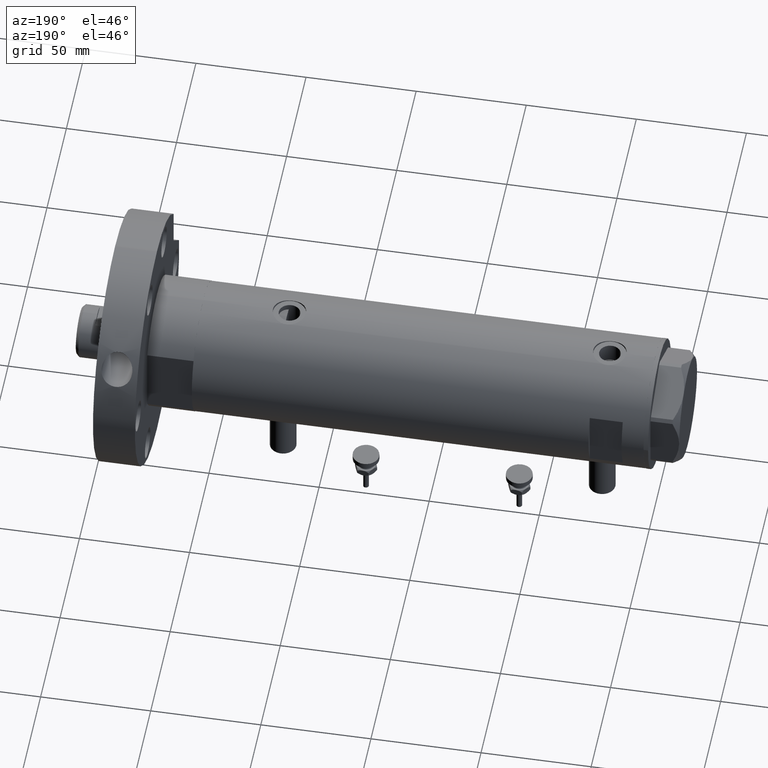
[diagram: clean part render]
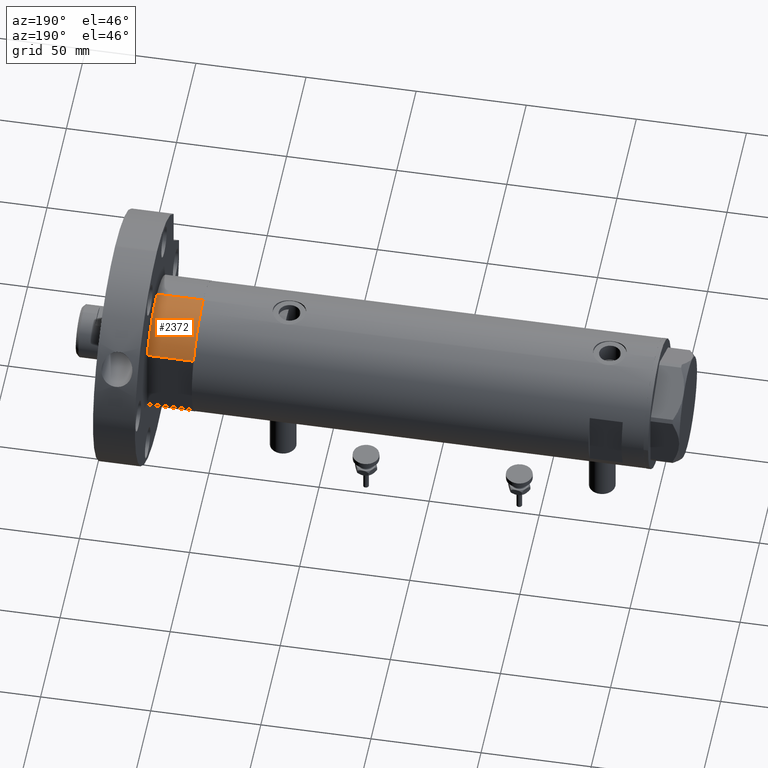
[diagram: same view with one face highlighted and labeled with its STEP entity id]
A machine part, auxiliary view. The second image highlights one B-rep face of the part: STEP entity #2372.
In plain terms, the highlighted cylindrical surface (partial cylindrical patch) has radius 29.5 mm, axis along (-1, -0, 0).
Its self-contained STEP definition (entity closure, byte-faithful):
#5 = ORIENTED_EDGE ( 'NONE', *, *, #3752, .F. ) ;
#146 = VECTOR ( 'NONE', #1447, 1000.000000000000000 ) ;
#256 = CARTESIAN_POINT ( 'NONE',  ( 0.000000000000000000, 0.000000000000000000, 21.00000000000000000 ) ) ;
#376 = CIRCLE ( 'NONE', #4631, 29.50000000000000355 ) ;
#1246 = CARTESIAN_POINT ( 'NONE',  ( -29.50000000000000355, 0.000000000000000000, 0.000000000000000000 ) ) ;
#1447 = DIRECTION ( 'NONE',  ( -0.000000000000000000, -0.000000000000000000, 1.000000000000000000 ) ) ;
#1579 = DIRECTION ( 'NONE',  ( 0.000000000000000000, 0.000000000000000000, 1.000000000000000000 ) ) ;
#2157 = DIRECTION ( 'NONE',  ( -0.000000000000000000, -0.000000000000000000, -1.000000000000000000 ) ) ;
#2199 = DIRECTION ( 'NONE',  ( 1.000000000000000000, 0.000000000000000000, 0.000000000000000000 ) ) ;
#2372 = ADVANCED_FACE ( 'NONE', ( #2513 ), #6072, .T. ) ;
#2513 = FACE_OUTER_BOUND ( 'NONE', #6602, .T. ) ;
#2766 = EDGE_CURVE ( 'NONE', #4077, #6419, #7573, .T. ) ;
#2932 = VERTEX_POINT ( 'NONE', #3550 ) ;
#2998 = DIRECTION ( 'NONE',  ( -0.000000000000000000, -0.000000000000000000, -1.000000000000000000 ) ) ;
#3382 = ORIENTED_EDGE ( 'NONE', *, *, #2766, .T. ) ;
#3495 = ORIENTED_EDGE ( 'NONE', *, *, #4312, .F. ) ;
#3550 = CARTESIAN_POINT ( 'NONE',  ( -15.66045976336583045, 24.99999999999999645, 21.00000000000000355 ) ) ;
#3752 = EDGE_CURVE ( 'NONE', #2932, #4519, #376, .T. ) ;
#3821 = CARTESIAN_POINT ( 'NONE',  ( -29.50000000000000355, 0.000000000000000000, 21.00000000000000000 ) ) ;
#4077 = VERTEX_POINT ( 'NONE', #7147 ) ;
#4312 = EDGE_CURVE ( 'NONE', #4519, #6419, #5670, .T. ) ;
#4344 = LINE ( 'NONE', #6683, #146 ) ;
#4519 = VERTEX_POINT ( 'NONE', #7218 ) ;
#4631 = AXIS2_PLACEMENT_3D ( 'NONE', #7335, #6870, #2199 ) ;
#4638 = VECTOR ( 'NONE', #2157, 1000.000000000000000 ) ;
#4785 = ORIENTED_EDGE ( 'NONE', *, *, #5456, .F. ) ;
#5326 = DIRECTION ( 'NONE',  ( -1.000000000000000000, 0.000000000000000000, 0.000000000000000000 ) ) ;
#5456 = EDGE_CURVE ( 'NONE', #4077, #2932, #4344, .T. ) ;
#5670 = LINE ( 'NONE', #3821, #4638 ) ;
#6072 = CYLINDRICAL_SURFACE ( 'NONE', #6836, 29.50000000000000355 ) ;
#6221 = AXIS2_PLACEMENT_3D ( 'NONE', #6268, #1579, #7501 ) ;
#6268 = CARTESIAN_POINT ( 'NONE',  ( 0.000000000000000000, 0.000000000000000000, 0.000000000000000000 ) ) ;
#6419 = VERTEX_POINT ( 'NONE', #1246 ) ;
#6602 = EDGE_LOOP ( 'NONE', ( #3495, #5, #4785, #3382 ) ) ;
#6683 = CARTESIAN_POINT ( 'NONE',  ( -15.66045976336583401, 25.00000000000000000, 0.000000000000000000 ) ) ;
#6836 = AXIS2_PLACEMENT_3D ( 'NONE', #256, #2998, #5326 ) ;
#6870 = DIRECTION ( 'NONE',  ( 0.000000000000000000, 0.000000000000000000, 1.000000000000000000 ) ) ;
#7147 = CARTESIAN_POINT ( 'NONE',  ( -15.66045976336583401, 25.00000000000000000, 0.000000000000000000 ) ) ;
#7218 = CARTESIAN_POINT ( 'NONE',  ( -29.50000000000000355, 0.000000000000000000, 21.00000000000000000 ) ) ;
#7335 = CARTESIAN_POINT ( 'NONE',  ( 0.000000000000000000, 0.000000000000000000, 21.00000000000000000 ) ) ;
#7501 = DIRECTION ( 'NONE',  ( 1.000000000000000000, 0.000000000000000000, 0.000000000000000000 ) ) ;
#7573 = CIRCLE ( 'NONE', #6221, 29.50000000000000355 ) ;